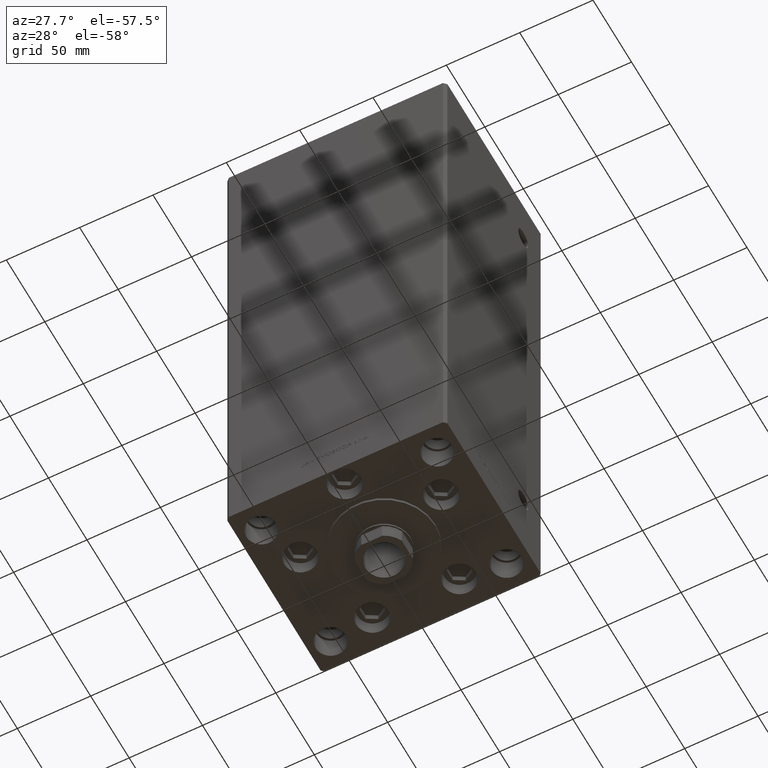
[diagram: clean part render]
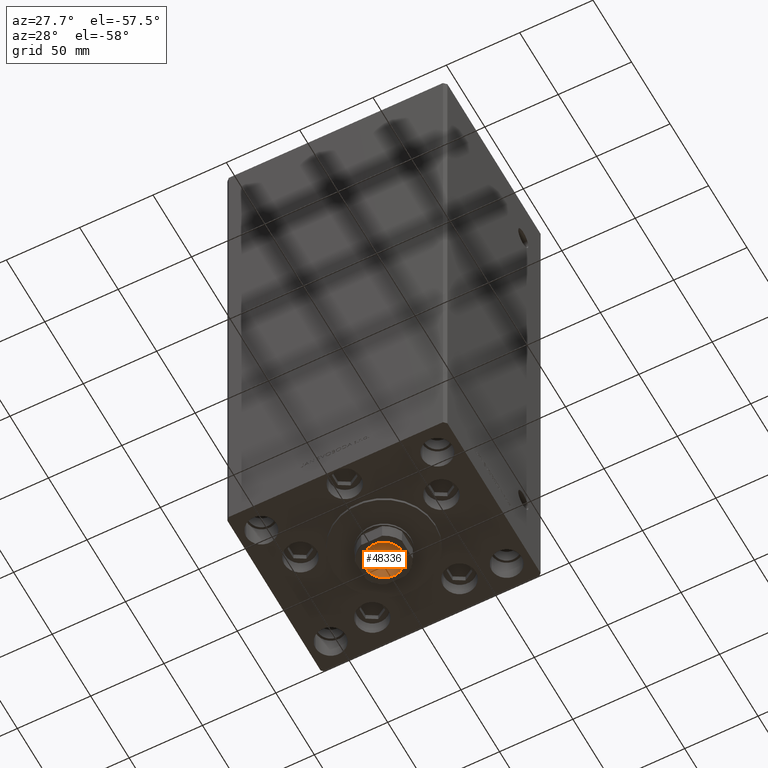
[diagram: same view with one face highlighted and labeled with its STEP entity id]
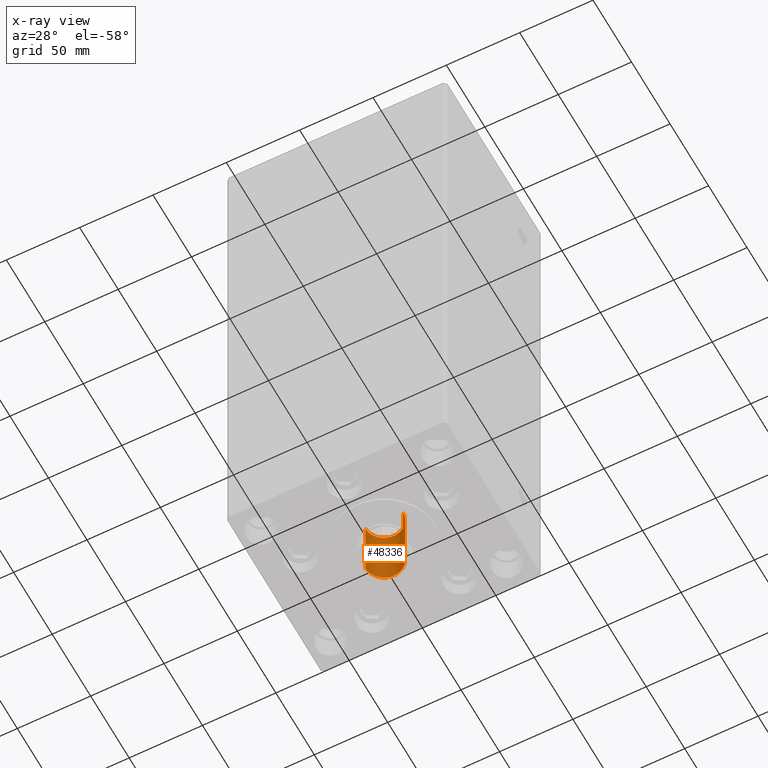
[diagram: x-ray of the same camera — body ghosted, the highlighted face saturated]
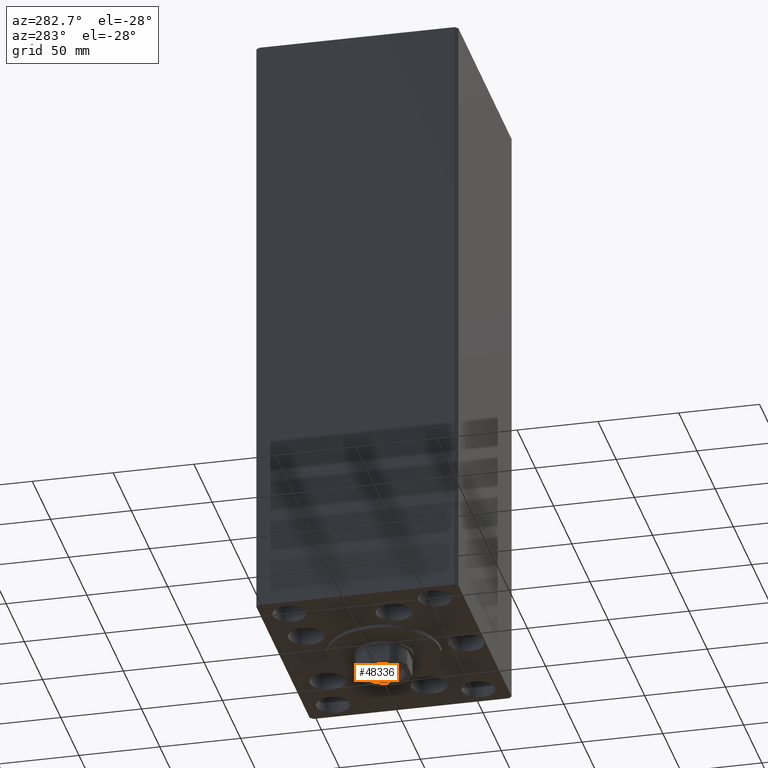
[diagram: same view with one face highlighted and labeled with its STEP entity id]
A machine part, auxiliary view. The second image highlights one B-rep face of the part: STEP entity #48336.
The next image is the same camera in x-ray: the body ghosted, the highlighted face saturated — about 0% of this face is hidden behind the body in this view.
A second angle (auxiliary view) of the same face is appended — the face is thin or edge-on in the first view.
In plain terms, the highlighted cylindrical surface (edge-blend (fillet) strip) has radius 12.75 mm, axis along (0, 0, -1).
Its self-contained STEP definition (entity closure, byte-faithful):
#1023 = EDGE_CURVE ( 'NONE', #2281, #38899, #39516, .T. ) ;
#2139 = DIRECTION ( 'NONE',  ( 1.000000000000000000, 0.000000000000000000, 0.000000000000000000 ) ) ;
#2177 = ORIENTED_EDGE ( 'NONE', *, *, #16591, .F. ) ;
#2281 = VERTEX_POINT ( 'NONE', #31008 ) ;
#2385 = ORIENTED_EDGE ( 'NONE', *, *, #18684, .T. ) ;
#2874 = DIRECTION ( 'NONE',  ( -0.000000000000000000, -0.000000000000000000, 1.000000000000000000 ) ) ;
#4326 = DIRECTION ( 'NONE',  ( -0.000000000000000000, -0.000000000000000000, 1.000000000000000000 ) ) ;
#4704 = VECTOR ( 'NONE', #4326, 1000.000000000000000 ) ;
#6580 = DIRECTION ( 'NONE',  ( 0.000000000000000000, 0.000000000000000000, 1.000000000000000000 ) ) ;
#8973 = CYLINDRICAL_SURFACE ( 'NONE', #15117, 12.74999999999999467 ) ;
#11806 = CARTESIAN_POINT ( 'NONE',  ( -12.74999999999999467, 1.561424668912874519E-15, 362.1999999999999886 ) ) ;
#13746 = EDGE_LOOP ( 'NONE', ( #2177, #24212, #2385, #27381 ) ) ;
#15117 = AXIS2_PLACEMENT_3D ( 'NONE', #15991, #46196, #42692 ) ;
#15178 = VECTOR ( 'NONE', #40447, 1000.000000000000000 ) ;
#15319 = CARTESIAN_POINT ( 'NONE',  ( 0.000000000000000000, 0.000000000000000000, 362.1999999999999886 ) ) ;
#15991 = CARTESIAN_POINT ( 'NONE',  ( 0.000000000000000000, 0.000000000000000000, 362.5000000000000568 ) ) ;
#16037 = CARTESIAN_POINT ( 'NONE',  ( -12.74999999999999112, 1.561424668912874125E-15, 317.5000000000000568 ) ) ;
#16591 = EDGE_CURVE ( 'NONE', #46194, #38899, #44685, .T. ) ;
#18082 = DIRECTION ( 'NONE',  ( 1.000000000000000000, 0.000000000000000000, 0.000000000000000000 ) ) ;
#18611 = VERTEX_POINT ( 'NONE', #21375 ) ;
#18684 = EDGE_CURVE ( 'NONE', #18611, #2281, #46526, .T. ) ;
#21375 = CARTESIAN_POINT ( 'NONE',  ( 12.74999999999999112, 0.000000000000000000, 317.5000000000000568 ) ) ;
#23091 = CIRCLE ( 'NONE', #46149, 12.74999999999999112 ) ;
#24212 = ORIENTED_EDGE ( 'NONE', *, *, #47215, .F. ) ;
#25235 = CARTESIAN_POINT ( 'NONE',  ( -12.74999999999999467, 1.561424668912874519E-15, 362.5000000000000568 ) ) ;
#27381 = ORIENTED_EDGE ( 'NONE', *, *, #1023, .T. ) ;
#27475 = FACE_OUTER_BOUND ( 'NONE', #13746, .T. ) ;
#31008 = CARTESIAN_POINT ( 'NONE',  ( 12.74999999999999467, 0.000000000000000000, 362.1999999999999886 ) ) ;
#31553 = AXIS2_PLACEMENT_3D ( 'NONE', #15319, #6580, #18082 ) ;
#38899 = VERTEX_POINT ( 'NONE', #11806 ) ;
#39516 = CIRCLE ( 'NONE', #31553, 12.74999999999999467 ) ;
#40447 = DIRECTION ( 'NONE',  ( -0.000000000000000000, -0.000000000000000000, 1.000000000000000000 ) ) ;
#42692 = DIRECTION ( 'NONE',  ( 1.000000000000000000, 0.000000000000000000, 0.000000000000000000 ) ) ;
#44685 = LINE ( 'NONE', #25235, #15178 ) ;
#44835 = CARTESIAN_POINT ( 'NONE',  ( 0.000000000000000000, 0.000000000000000000, 317.5000000000000568 ) ) ;
#46149 = AXIS2_PLACEMENT_3D ( 'NONE', #44835, #2874, #2139 ) ;
#46194 = VERTEX_POINT ( 'NONE', #16037 ) ;
#46196 = DIRECTION ( 'NONE',  ( -0.000000000000000000, -0.000000000000000000, 1.000000000000000000 ) ) ;
#46526 = LINE ( 'NONE', #49282, #4704 ) ;
#47215 = EDGE_CURVE ( 'NONE', #18611, #46194, #23091, .T. ) ;
#48336 = ADVANCED_FACE ( 'NONE', ( #27475 ), #8973, .F. ) ;
#49282 = CARTESIAN_POINT ( 'NONE',  ( 12.74999999999999467, 0.000000000000000000, 362.5000000000000568 ) ) ;